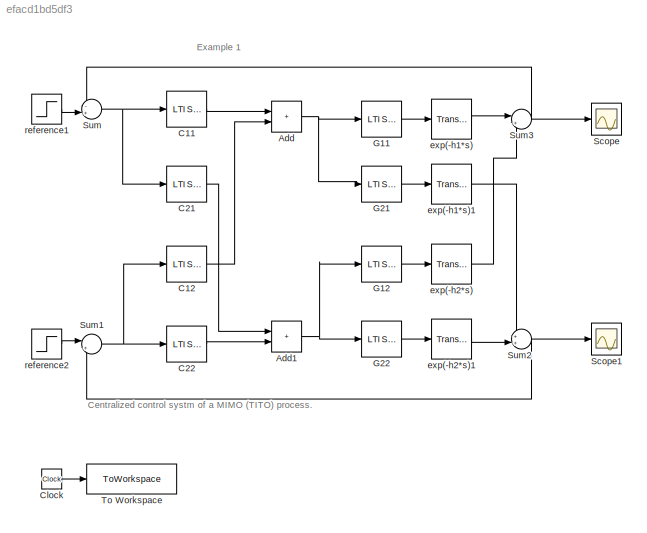
MODEL slx_efacd1bd5df3
KIND model
CONFIG AbsTol = auto
CONFIG EnableMultiTasking = off
CONFIG FixedStep = auto
CONFIG MaxStep = auto
CONFIG MinStep = auto
CONFIG RelTol = 1e-3
CONFIG SampleTimeConstraint = Unconstrained
CONFIG SolverName = VariableStepAuto
CONFIG StartTime = 0.0
CONFIG StopTime = 30
BLOCK [Sum] Add
  IconShape = rectangular
BLOCK [Sum] Add1
  IconShape = rectangular
BLOCK [Reference] C11  REF=cstblocks/LTI System
  SourceBlock = cstblocks/LTI System
  SourceType = LTI Block
BLOCK [Reference] C12  REF=cstblocks/LTI System
  SourceBlock = cstblocks/LTI System
  SourceType = LTI Block
BLOCK [Reference] C21  REF=cstblocks/LTI System
  SourceBlock = cstblocks/LTI System
  SourceType = LTI Block
BLOCK [Reference] C22  REF=cstblocks/LTI System
  SourceBlock = cstblocks/LTI System
  SourceType = LTI Block
BLOCK [Clock] Clock
BLOCK [Reference] G11  REF=cstblocks/LTI System
  SourceBlock = cstblocks/LTI System
  SourceType = LTI Block
BLOCK [Reference] G12  REF=cstblocks/LTI System
  SourceBlock = cstblocks/LTI System
  SourceType = LTI Block
BLOCK [Reference] G21  REF=cstblocks/LTI System
  SourceBlock = cstblocks/LTI System
  SourceType = LTI Block
BLOCK [Reference] G22  REF=cstblocks/LTI System
  SourceBlock = cstblocks/LTI System
  SourceType = LTI Block
BLOCK [Scope] Scope
  Floating = off
  NumInputPorts = 1
  ScopeSpecificationString = Simulink.scopes.TimeScopeBlockCfg('CurrentConfiguration', extmgr.ConfigurationSet(extmgr.Configuration('Core','General UI',true),extmgr.Configuration('Core','Source UI',true),extmgr.Configuration('Sources','WiredSimulink',true),extmgr.Configuration('Visuals','Time Domain',true,'SerializedDisplays',{struct('MinYLimReal','-0.20269','MaxYLimReal','1.8242','YLabelReal','','MinYLimMag','0.00000','MaxYL...<+1320ch>
BLOCK [Scope] Scope1
  Floating = off
  NumInputPorts = 1
  ScopeSpecificationString = Simulink.scopes.TimeScopeBlockCfg('CurrentConfiguration', extmgr.ConfigurationSet(extmgr.Configuration('Core','General UI',true),extmgr.Configuration('Core','Source UI',true),extmgr.Configuration('Sources','WiredSimulink',true,'DataLoggingVariableName','ScopeData1'),extmgr.Configuration('Visuals','Time Domain',true),extmgr.Configuration('Tools','Plot Navigation',true),extmgr.Configuration('Tools',...<+40ch>
BLOCK [Sum] Sum
  Inputs = -+|
BLOCK [Sum] Sum1
  Inputs = |+-
BLOCK [Sum] Sum2
  Inputs = ++|
BLOCK [Sum] Sum3
  Inputs = |++
BLOCK [ToWorkspace] To Workspace
  FixptAsFi = on
  MaxDataPoints = inf
  SampleTime = -1
  VariableName = cpi_time
BLOCK [TransportDelay] exp(-h1*s)
  DelayTime = h1
BLOCK [TransportDelay] exp(-h1*s)1
  DelayTime = h1
BLOCK [TransportDelay] exp(-h2*s)
  DelayTime = h2
BLOCK [TransportDelay] exp(-h2*s)1
  DelayTime = h2
BLOCK [Step] reference1
  SampleTime = 0
  Time = 0
BLOCK [Step] reference2
  SampleTime = 0
  Time = 15
ANNOTATION (root): Centralized control systm of a MIMO (TITO) process.
ANNOTATION (root): Example 1
NET Add1:1 -> G12:1, G22:1
NET Add:1 -> G11:1, G21:1
LINE C11:1 -> Add:1
LINE C12:1 -> Add:2
LINE C21:1 -> Add1:1
LINE C22:1 -> Add1:2
LINE Clock:1 -> To Workspace:1
LINE G11:1 -> exp(-h1*s):1
LINE G12:1 -> exp(-h2*s):1
LINE G21:1 -> exp(-h1*s)1:1
LINE G22:1 -> exp(-h2*s)1:1
NET Sum1:1 -> C12:1, C22:1
NET Sum2:1 -> Scope1:1, Sum1:2
NET Sum3:1 -> Scope:1, Sum:1
NET Sum:1 -> C11:1, C21:1
LINE exp(-h1*s)1:1 -> Sum2:1
LINE exp(-h1*s):1 -> Sum3:1
LINE exp(-h2*s)1:1 -> Sum2:2
LINE exp(-h2*s):1 -> Sum3:2
LINE reference1:1 -> Sum:2
LINE reference2:1 -> Sum1:1
note: NET lines group one-source signal fan-out (src -> all destinations, sorted); 1:1 wires keep LINE
